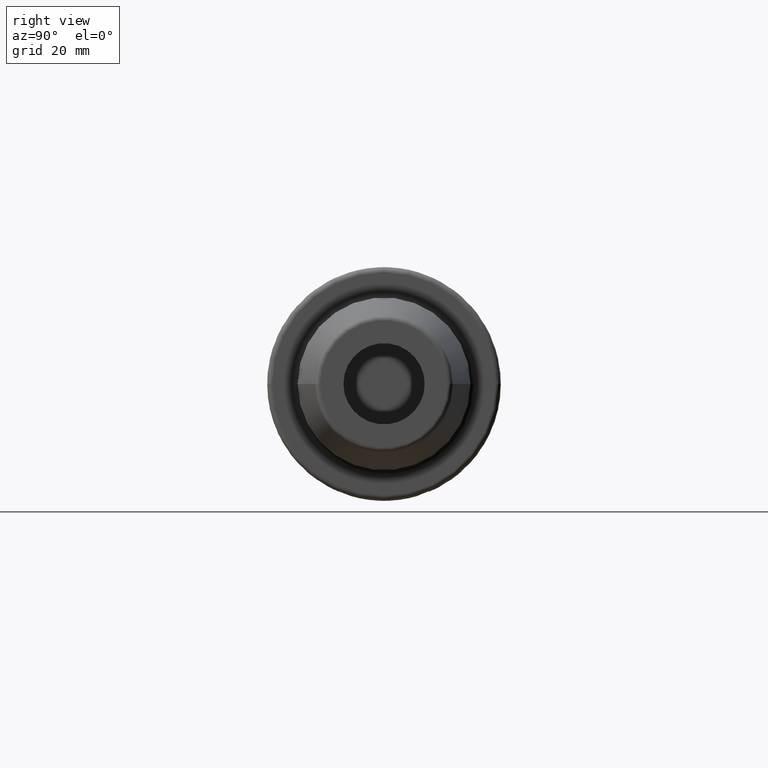
[diagram: clean part render]
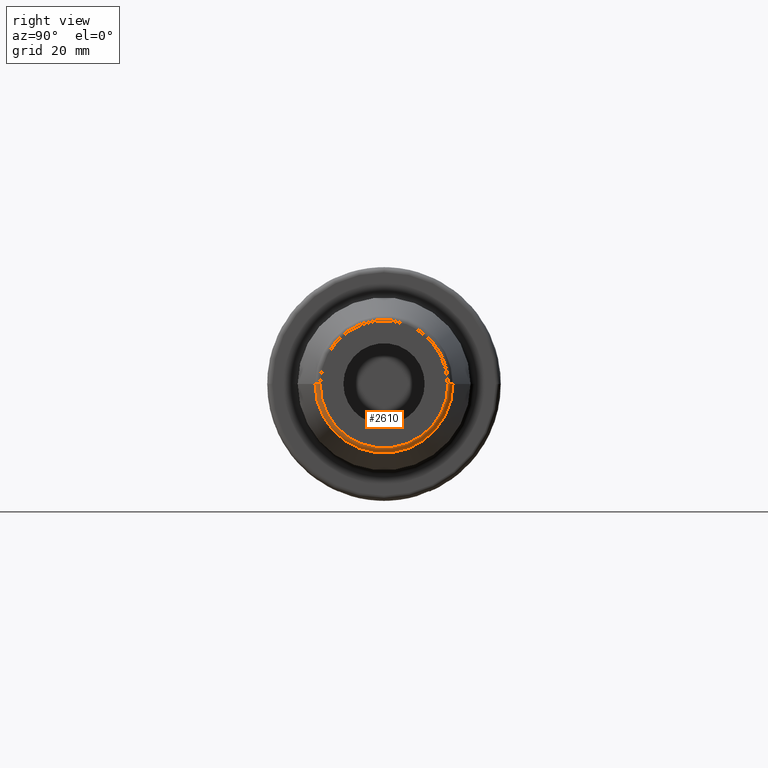
[diagram: same view with one face highlighted and labeled with its STEP entity id]
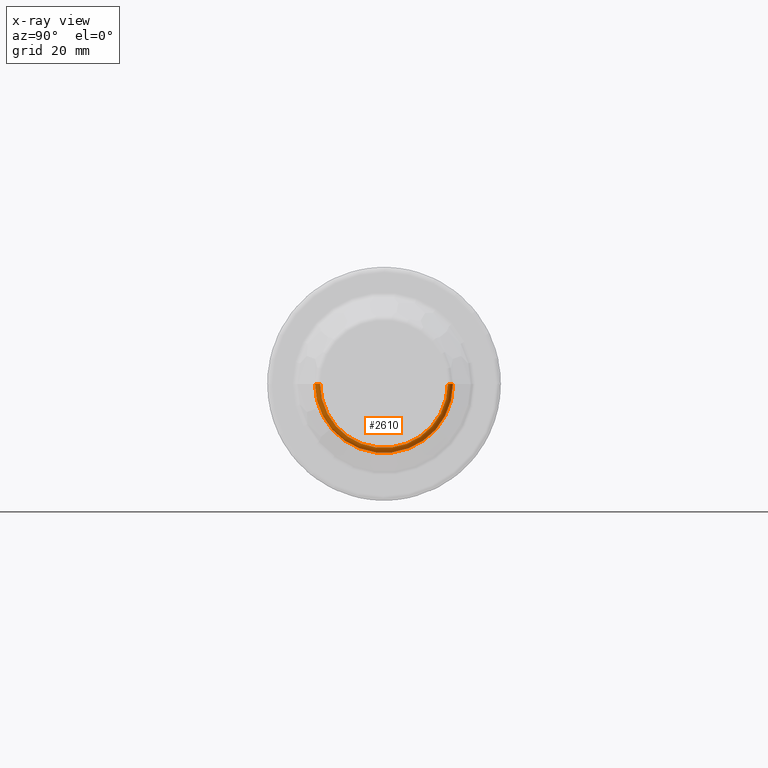
[diagram: x-ray of the same camera — body ghosted, the highlighted face saturated]
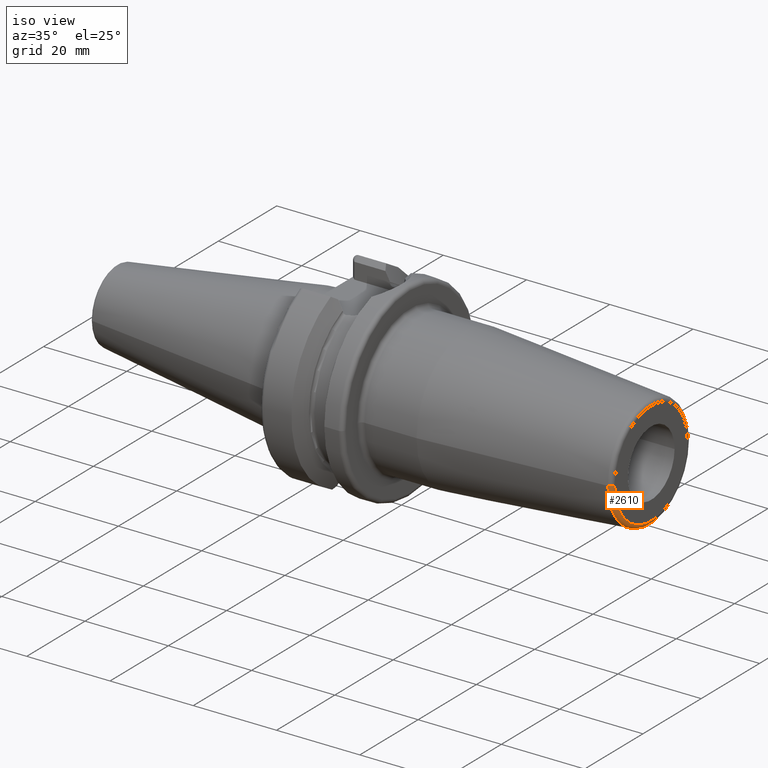
[diagram: same view with one face highlighted and labeled with its STEP entity id]
A machine part, right view. The second image highlights one B-rep face of the part: STEP entity #2610.
The next image is the same camera in x-ray: the body ghosted, the highlighted face saturated — about 0% of this face is hidden behind the body in this view.
A second angle (iso view) of the same face is appended — the face is thin or edge-on in the first view.
In plain terms, the highlighted toroidal blend (fillet) surface has major radius 12.5756 mm and minor (blend) radius 1 mm.
Its self-contained STEP definition (entity closure, byte-faithful):
#878=CARTESIAN_POINT('',(7.907845909573E1,0.E0,0.E0));
#879=DIRECTION('',(-1.E0,0.E0,0.E0));
#880=DIRECTION('',(0.E0,1.E0,0.E0));
#881=AXIS2_PLACEMENT_3D('',#878,#879,#880);
#888=CARTESIAN_POINT('',(7.9E1,-1.257560950834E1,-1.929514048538E-10));
#889=DIRECTION('',(0.E0,-1.534330648645E-11,1.E0));
#890=DIRECTION('',(7.845909572953E-2,-9.969173337330E-1,-1.529600819312E-11));
#891=AXIS2_PLACEMENT_3D('',#888,#889,#890);
#893=CARTESIAN_POINT('',(7.9E1,1.257560950834E1,1.929526538547E-10));
#894=DIRECTION('',(0.E0,1.534340536569E-11,-1.E0));
#895=DIRECTION('',(7.845909572953E-2,9.969173337330E-1,1.529610676754E-11));
#896=AXIS2_PLACEMENT_3D('',#893,#894,#895);
#908=CARTESIAN_POINT('',(8.E1,0.E0,0.E0));
#909=DIRECTION('',(-1.E0,0.E0,0.E0));
#910=DIRECTION('',(0.E0,1.E0,0.E0));
#911=AXIS2_PLACEMENT_3D('',#908,#909,#910);
#1395=CARTESIAN_POINT('',(7.907845909573E1,1.357252684207E1,
-8.780207318833E-12));
#1396=VERTEX_POINT('',#1395);
#1397=CARTESIAN_POINT('',(7.907845909573E1,-1.357252684207E1,
8.779784841150E-12));
#1398=VERTEX_POINT('',#1397);
#1399=CARTESIAN_POINT('',(8.E1,1.257560950834E1,0.E0));
#1400=CARTESIAN_POINT('',(8.E1,-1.257560950834E1,0.E0));
#1401=VERTEX_POINT('',#1399);
#1402=VERTEX_POINT('',#1400);
#2598=CARTESIAN_POINT('',(7.9E1,0.E0,0.E0));
#2599=DIRECTION('',(1.E0,0.E0,0.E0));
#2600=DIRECTION('',(0.E0,9.999530017895E-1,9.695061228389E-3));
#2601=AXIS2_PLACEMENT_3D('',#2598,#2599,#2600);
#2602=TOROIDAL_SURFACE('',#2601,1.257560950834E1,1.E0);
#2603=ORIENTED_EDGE('',*,*,#2565,.T.);
#2604=ORIENTED_EDGE('',*,*,#2593,.T.);
#2606=ORIENTED_EDGE('',*,*,#2605,.F.);
#2607=ORIENTED_EDGE('',*,*,#2589,.F.);
#2608=EDGE_LOOP('',(#2603,#2604,#2606,#2607));
#2609=FACE_OUTER_BOUND('',#2608,.F.);
#2610=ADVANCED_FACE('',(#2609),#2602,.T.);
#882=CIRCLE('',#881,1.357252684207E1);
#892=CIRCLE('',#891,1.E0);
#897=CIRCLE('',#896,1.E0);
#912=CIRCLE('',#911,1.257560950834E1);
#2565=EDGE_CURVE('',#1396,#1398,#882,.T.);
#2589=EDGE_CURVE('',#1396,#1401,#897,.T.);
#2593=EDGE_CURVE('',#1398,#1402,#892,.T.);
#2605=EDGE_CURVE('',#1401,#1402,#912,.T.);